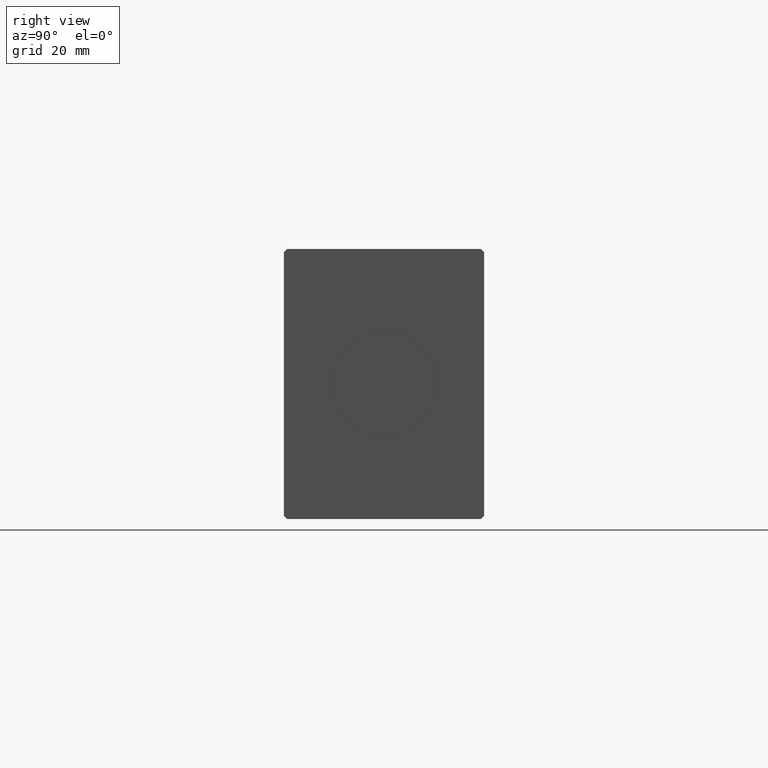
[diagram: clean part render]
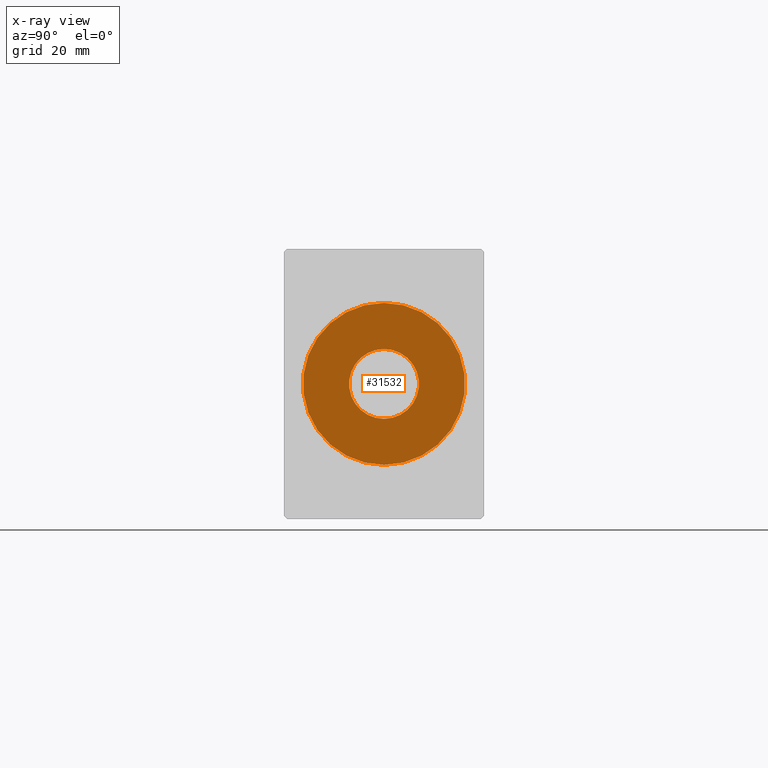
[diagram: x-ray — body ghosted, one internal face saturated and labeled with its STEP entity id]
A machine part, right view, then the same camera in x-ray: the body is ghosted and one INTERNAL B-rep face — a face not visible from any outside direction — is saturated and labeled: STEP entity #31532.
In plain terms, the highlighted planar face has unit normal (-1, 0, 0).
Its self-contained STEP definition (entity closure, byte-faithful):
#498 = CIRCLE ( 'NONE', #7583, 25.50000000000000000 ) ;
#527 = DIRECTION ( 'NONE',  ( 1.000000000000000000, 0.000000000000000000, 0.000000000000000000 ) ) ;
#1207 = CARTESIAN_POINT ( 'NONE',  ( 0.000000000000000000, 0.000000000000000000, 0.000000000000000000 ) ) ;
#1363 = CARTESIAN_POINT ( 'NONE',  ( -11.00000000000000000, 0.000000000000000000, 0.000000000000000000 ) ) ;
#2028 = AXIS2_PLACEMENT_3D ( 'NONE', #39877, #12209, #20483 ) ;
#2435 = EDGE_LOOP ( 'NONE', ( #19475, #11528 ) ) ;
#4271 = EDGE_LOOP ( 'NONE', ( #32840, #30634 ) ) ;
#5569 = EDGE_CURVE ( 'NONE', #22421, #7873, #20340, .T. ) ;
#5764 = PLANE ( 'NONE',  #2028 ) ;
#6195 = AXIS2_PLACEMENT_3D ( 'NONE', #19451, #31779, #38041 ) ;
#6265 = EDGE_CURVE ( 'NONE', #7873, #22421, #498, .T. ) ;
#7583 = AXIS2_PLACEMENT_3D ( 'NONE', #27170, #39503, #527 ) ;
#7873 = VERTEX_POINT ( 'NONE', #11099 ) ;
#9761 = CIRCLE ( 'NONE', #32302, 11.00000000000000000 ) ;
#10312 = CARTESIAN_POINT ( 'NONE',  ( 0.000000000000000000, 0.000000000000000000, 0.000000000000000000 ) ) ;
#10489 = DIRECTION ( 'NONE',  ( 1.000000000000000000, 0.000000000000000000, 0.000000000000000000 ) ) ;
#11099 = CARTESIAN_POINT ( 'NONE',  ( 25.50000000000000000, 3.122849337825750222E-15, 0.000000000000000000 ) ) ;
#11305 = VERTEX_POINT ( 'NONE', #1363 ) ;
#11528 = ORIENTED_EDGE ( 'NONE', *, *, #13864, .T. ) ;
#12209 = DIRECTION ( 'NONE',  ( 0.000000000000000000, 0.000000000000000000, 1.000000000000000000 ) ) ;
#13864 = EDGE_CURVE ( 'NONE', #37308, #11305, #9761, .T. ) ;
#18837 = AXIS2_PLACEMENT_3D ( 'NONE', #1207, #38141, #10489 ) ;
#19451 = CARTESIAN_POINT ( 'NONE',  ( 0.000000000000000000, 0.000000000000000000, 0.000000000000000000 ) ) ;
#19475 = ORIENTED_EDGE ( 'NONE', *, *, #33740, .T. ) ;
#19589 = DIRECTION ( 'NONE',  ( -0.000000000000000000, 0.000000000000000000, 1.000000000000000000 ) ) ;
#20340 = CIRCLE ( 'NONE', #6195, 25.50000000000000000 ) ;
#20483 = DIRECTION ( 'NONE',  ( 1.000000000000000000, 0.000000000000000000, -0.000000000000000000 ) ) ;
#22421 = VERTEX_POINT ( 'NONE', #36387 ) ;
#22810 = DIRECTION ( 'NONE',  ( 1.000000000000000000, 0.000000000000000000, 0.000000000000000000 ) ) ;
#27170 = CARTESIAN_POINT ( 'NONE',  ( 0.000000000000000000, 0.000000000000000000, 0.000000000000000000 ) ) ;
#27227 = CIRCLE ( 'NONE', #18837, 11.00000000000000000 ) ;
#30634 = ORIENTED_EDGE ( 'NONE', *, *, #6265, .F. ) ;
#31532 = ADVANCED_FACE ( 'NONE', ( #39479, #33412 ), #5764, .F. ) ;
#31779 = DIRECTION ( 'NONE',  ( 0.000000000000000000, 0.000000000000000000, 1.000000000000000000 ) ) ;
#32302 = AXIS2_PLACEMENT_3D ( 'NONE', #10312, #19589, #22810 ) ;
#32840 = ORIENTED_EDGE ( 'NONE', *, *, #5569, .F. ) ;
#33412 = FACE_BOUND ( 'NONE', #2435, .T. ) ;
#33740 = EDGE_CURVE ( 'NONE', #11305, #37308, #27227, .T. ) ;
#34566 = CARTESIAN_POINT ( 'NONE',  ( 11.00000000000000000, 1.347111479062088405E-15, 0.000000000000000000 ) ) ;
#36387 = CARTESIAN_POINT ( 'NONE',  ( -25.50000000000000000, 0.000000000000000000, 0.000000000000000000 ) ) ;
#37308 = VERTEX_POINT ( 'NONE', #34566 ) ;
#38041 = DIRECTION ( 'NONE',  ( 1.000000000000000000, 0.000000000000000000, 0.000000000000000000 ) ) ;
#38141 = DIRECTION ( 'NONE',  ( -0.000000000000000000, 0.000000000000000000, 1.000000000000000000 ) ) ;
#39479 = FACE_OUTER_BOUND ( 'NONE', #4271, .T. ) ;
#39503 = DIRECTION ( 'NONE',  ( 0.000000000000000000, 0.000000000000000000, 1.000000000000000000 ) ) ;
#39877 = CARTESIAN_POINT ( 'NONE',  ( 0.000000000000000000, 0.000000000000000000, 0.000000000000000000 ) ) ;